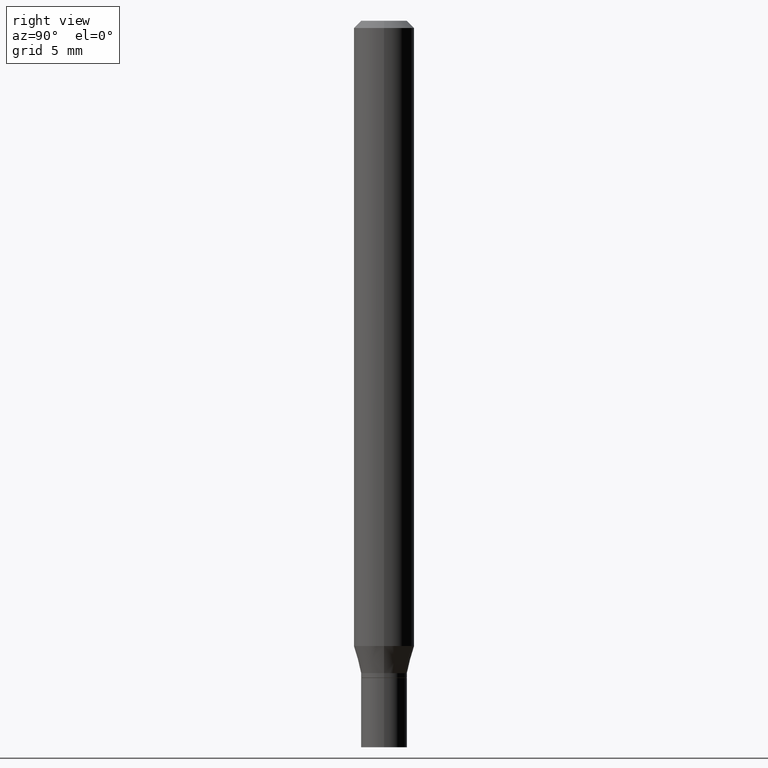
[diagram: clean part render]
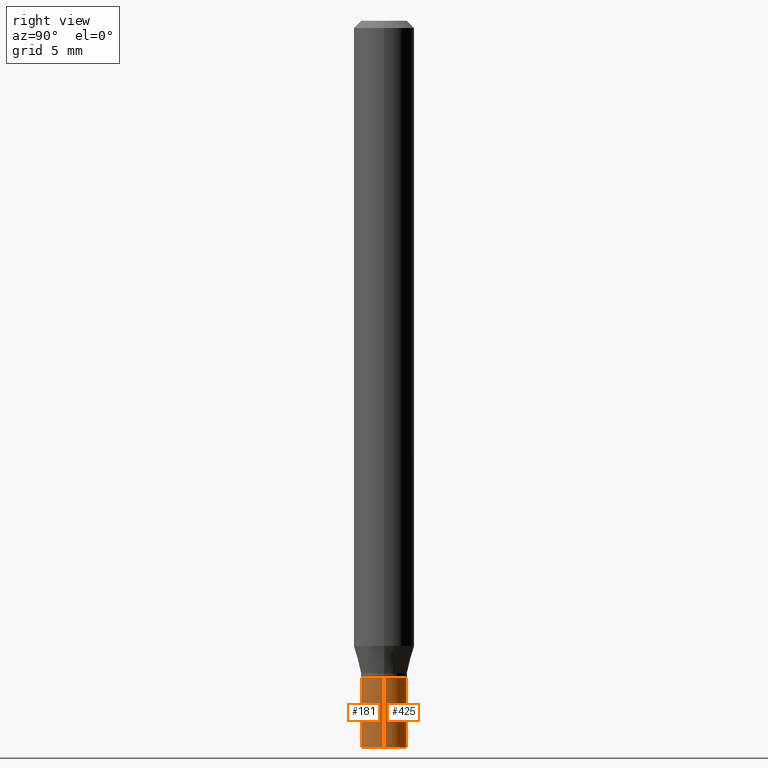
[diagram: same view with one multi-face feature highlighted, each face labeled with its STEP entity id]
A machine part, right view. The highlighted faces form ONE feature: a constant-radius fillet chain: 2 tangent blend faces with common blend radius 1.2065 mm. The faces share edges in the B-rep.
Their STEP definitions:
[1] entity #181 (Cylinder):
#4 = CARTESIAN_POINT ( 'NONE',  ( 0.04749999999999999362, -5.069630904000245946E-15, -1.356999999999999984 ) ) ;
#9 = ORIENTED_EDGE ( 'NONE', *, *, #316, .F. ) ;
#16 = EDGE_CURVE ( 'NONE', #155, #393, #394, .T. ) ;
#44 = DIRECTION ( 'NONE',  ( -2.445468806185136597E-29, 3.491481338843145583E-15, 1.000000000000000000 ) ) ;
#54 = CARTESIAN_POINT ( 'NONE',  ( 0.04749999999999999362, -5.568912735454815688E-15, -1.500000000000000222 ) ) ;
#66 = AXIS2_PLACEMENT_3D ( 'NONE', #276, #98, #284 ) ;
#70 = CARTESIAN_POINT ( 'NONE',  ( -0.04749999999999999362, -4.650073293051385418E-15, -1.500000000000000222 ) ) ;
#72 = DIRECTION ( 'NONE',  ( -2.445468806185136877E-29, 3.491481338843145188E-15, 1.000000000000000000 ) ) ;
#75 = CYLINDRICAL_SURFACE ( 'NONE', #185, 0.04749999999999999362 ) ;
#80 = CARTESIAN_POINT ( 'NONE',  ( -0.04749999999999999362, 3.375077994860475429E-16, -2.336494167871079910E-30 ) ) ;
#86 = DIRECTION ( 'NONE',  ( -2.445468806185136877E-29, 3.491481338843145188E-15, 1.000000000000000000 ) ) ;
#87 = VECTOR ( 'NONE', #72, 39.37007874015748143 ) ;
#90 = CARTESIAN_POINT ( 'NONE',  ( -0.04749999999999999362, -4.650073293051385418E-15, -1.356999999999999984 ) ) ;
#96 = AXIS2_PLACEMENT_3D ( 'NONE', #411, #44, #404 ) ;
#98 = DIRECTION ( 'NONE',  ( -2.445468806185136597E-29, 3.491481338843145583E-15, 1.000000000000000000 ) ) ;
#101 = CARTESIAN_POINT ( 'NONE',  ( 0.04749999999999999362, -3.316907271900976589E-16, 2.316183968503069081E-30 ) ) ;
#119 = VERTEX_POINT ( 'NONE', #4 ) ;
#121 = EDGE_CURVE ( 'NONE', #155, #426, #298, .T. ) ;
#155 = VERTEX_POINT ( 'NONE', #70 ) ;
#179 = FACE_OUTER_BOUND ( 'NONE', #375, .T. ) ;
#181 = ADVANCED_FACE ( 'NONE', ( #179 ), #75, .T. ) ;
#183 = DIRECTION ( 'NONE',  ( -2.445468806185136597E-29, 3.491481338843145583E-15, 1.000000000000000000 ) ) ;
#185 = AXIS2_PLACEMENT_3D ( 'NONE', #440, #183, #406 ) ;
#230 = ORIENTED_EDGE ( 'NONE', *, *, #240, .T. ) ;
#240 = EDGE_CURVE ( 'NONE', #393, #119, #325, .T. ) ;
#253 = CIRCLE ( 'NONE', #96, 0.04749999999999999362 ) ;
#276 = CARTESIAN_POINT ( 'NONE',  ( 3.668203209277704895E-29, -5.237222008264718177E-15, -1.500000000000000222 ) ) ;
#284 = DIRECTION ( 'NONE',  ( 1.000000000000000000, -6.982962677686261977E-15, 0.000000000000000000 ) ) ;
#292 = ORIENTED_EDGE ( 'NONE', *, *, #121, .F. ) ;
#298 = LINE ( 'NONE', #80, #87 ) ;
#316 = EDGE_CURVE ( 'NONE', #426, #119, #253, .T. ) ;
#325 = LINE ( 'NONE', #101, #343 ) ;
#343 = VECTOR ( 'NONE', #86, 39.37007874015748143 ) ;
#375 = EDGE_LOOP ( 'NONE', ( #292, #453, #230, #9 ) ) ;
#393 = VERTEX_POINT ( 'NONE', #54 ) ;
#394 = CIRCLE ( 'NONE', #66, 0.04749999999999999362 ) ;
#404 = DIRECTION ( 'NONE',  ( 1.000000000000000000, -6.982962677686261977E-15, 0.000000000000000000 ) ) ;
#406 = DIRECTION ( 'NONE',  ( 1.000000000000000000, -6.982962677686267499E-15, 4.876176775795935793E-29 ) ) ;
#411 = CARTESIAN_POINT ( 'NONE',  ( 3.318501169993230375E-29, -4.737940176810148435E-15, -1.356999999999999984 ) ) ;
#426 = VERTEX_POINT ( 'NONE', #90 ) ;
#440 = CARTESIAN_POINT ( 'NONE',  ( 0.000000000000000000, 0.000000000000000000, 0.000000000000000000 ) ) ;
#453 = ORIENTED_EDGE ( 'NONE', *, *, #16, .T. ) ;
[2] entity #425 (Cylinder):
#3 = ORIENTED_EDGE ( 'NONE', *, *, #240, .F. ) ;
#4 = CARTESIAN_POINT ( 'NONE',  ( 0.04749999999999999362, -5.069630904000245946E-15, -1.356999999999999984 ) ) ;
#28 = EDGE_CURVE ( 'NONE', #119, #426, #335, .T. ) ;
#29 = DIRECTION ( 'NONE',  ( 1.000000000000000000, -6.982962677686267499E-15, 4.876176775795935793E-29 ) ) ;
#54 = CARTESIAN_POINT ( 'NONE',  ( 0.04749999999999999362, -5.568912735454815688E-15, -1.500000000000000222 ) ) ;
#62 = ORIENTED_EDGE ( 'NONE', *, *, #28, .F. ) ;
#70 = CARTESIAN_POINT ( 'NONE',  ( -0.04749999999999999362, -4.650073293051385418E-15, -1.500000000000000222 ) ) ;
#72 = DIRECTION ( 'NONE',  ( -2.445468806185136877E-29, 3.491481338843145188E-15, 1.000000000000000000 ) ) ;
#80 = CARTESIAN_POINT ( 'NONE',  ( -0.04749999999999999362, 3.375077994860475429E-16, -2.336494167871079910E-30 ) ) ;
#84 = AXIS2_PLACEMENT_3D ( 'NONE', #346, #307, #29 ) ;
#86 = DIRECTION ( 'NONE',  ( -2.445468806185136877E-29, 3.491481338843145188E-15, 1.000000000000000000 ) ) ;
#87 = VECTOR ( 'NONE', #72, 39.37007874015748143 ) ;
#90 = CARTESIAN_POINT ( 'NONE',  ( -0.04749999999999999362, -4.650073293051385418E-15, -1.356999999999999984 ) ) ;
#101 = CARTESIAN_POINT ( 'NONE',  ( 0.04749999999999999362, -3.316907271900976589E-16, 2.316183968503069081E-30 ) ) ;
#107 = DIRECTION ( 'NONE',  ( 1.000000000000000000, -6.982962677686261977E-15, 0.000000000000000000 ) ) ;
#119 = VERTEX_POINT ( 'NONE', #4 ) ;
#120 = FACE_OUTER_BOUND ( 'NONE', #421, .T. ) ;
#121 = EDGE_CURVE ( 'NONE', #155, #426, #298, .T. ) ;
#124 = CIRCLE ( 'NONE', #417, 0.04749999999999999362 ) ;
#151 = EDGE_CURVE ( 'NONE', #393, #155, #124, .T. ) ;
#155 = VERTEX_POINT ( 'NONE', #70 ) ;
#157 = CYLINDRICAL_SURFACE ( 'NONE', #84, 0.04749999999999999362 ) ;
#205 = DIRECTION ( 'NONE',  ( -2.445468806185136597E-29, 3.491481338843145583E-15, 1.000000000000000000 ) ) ;
#240 = EDGE_CURVE ( 'NONE', #393, #119, #325, .T. ) ;
#288 = CARTESIAN_POINT ( 'NONE',  ( 3.318501169993230375E-29, -4.737940176810148435E-15, -1.356999999999999984 ) ) ;
#294 = CARTESIAN_POINT ( 'NONE',  ( 3.668203209277704895E-29, -5.237222008264718177E-15, -1.500000000000000222 ) ) ;
#298 = LINE ( 'NONE', #80, #87 ) ;
#307 = DIRECTION ( 'NONE',  ( -2.445468806185136597E-29, 3.491481338843145583E-15, 1.000000000000000000 ) ) ;
#313 = ORIENTED_EDGE ( 'NONE', *, *, #121, .T. ) ;
#325 = LINE ( 'NONE', #101, #343 ) ;
#327 = DIRECTION ( 'NONE',  ( -2.445468806185136597E-29, 3.491481338843145583E-15, 1.000000000000000000 ) ) ;
#335 = CIRCLE ( 'NONE', #455, 0.04749999999999999362 ) ;
#343 = VECTOR ( 'NONE', #86, 39.37007874015748143 ) ;
#346 = CARTESIAN_POINT ( 'NONE',  ( 0.000000000000000000, 0.000000000000000000, 0.000000000000000000 ) ) ;
#393 = VERTEX_POINT ( 'NONE', #54 ) ;
#412 = ORIENTED_EDGE ( 'NONE', *, *, #151, .T. ) ;
#417 = AXIS2_PLACEMENT_3D ( 'NONE', #294, #327, #438 ) ;
#421 = EDGE_LOOP ( 'NONE', ( #412, #313, #62, #3 ) ) ;
#425 = ADVANCED_FACE ( 'NONE', ( #120 ), #157, .T. ) ;
#426 = VERTEX_POINT ( 'NONE', #90 ) ;
#438 = DIRECTION ( 'NONE',  ( 1.000000000000000000, -6.982962677686261977E-15, 0.000000000000000000 ) ) ;
#455 = AXIS2_PLACEMENT_3D ( 'NONE', #288, #205, #107 ) ;